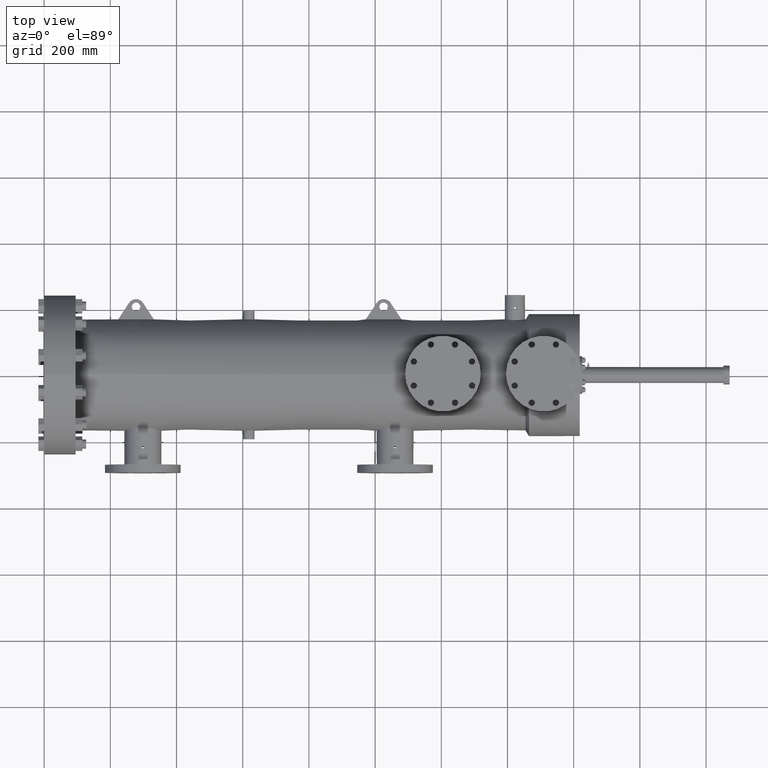
[diagram: clean part render]
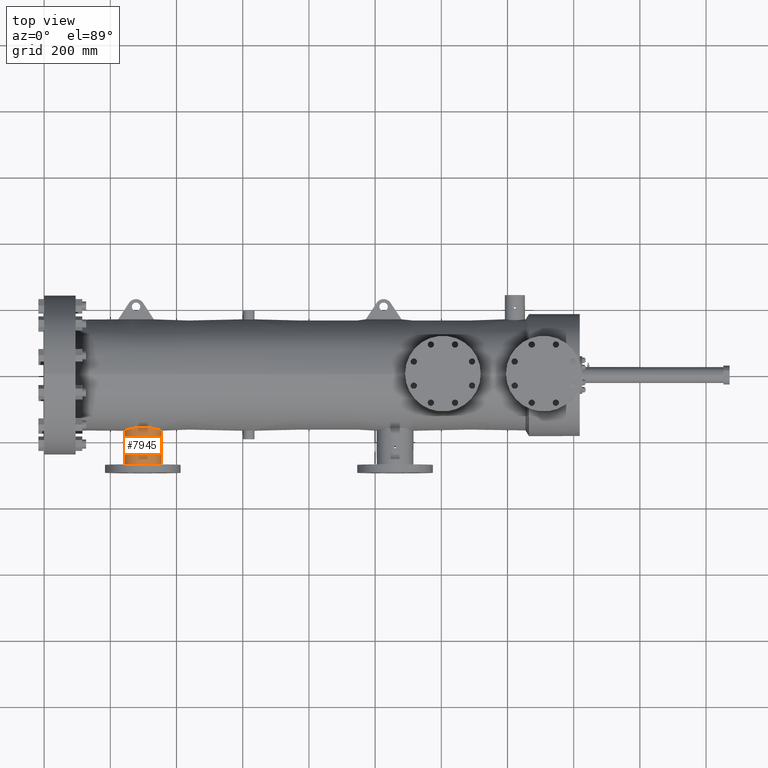
[diagram: same view with one face highlighted and labeled with its STEP entity id]
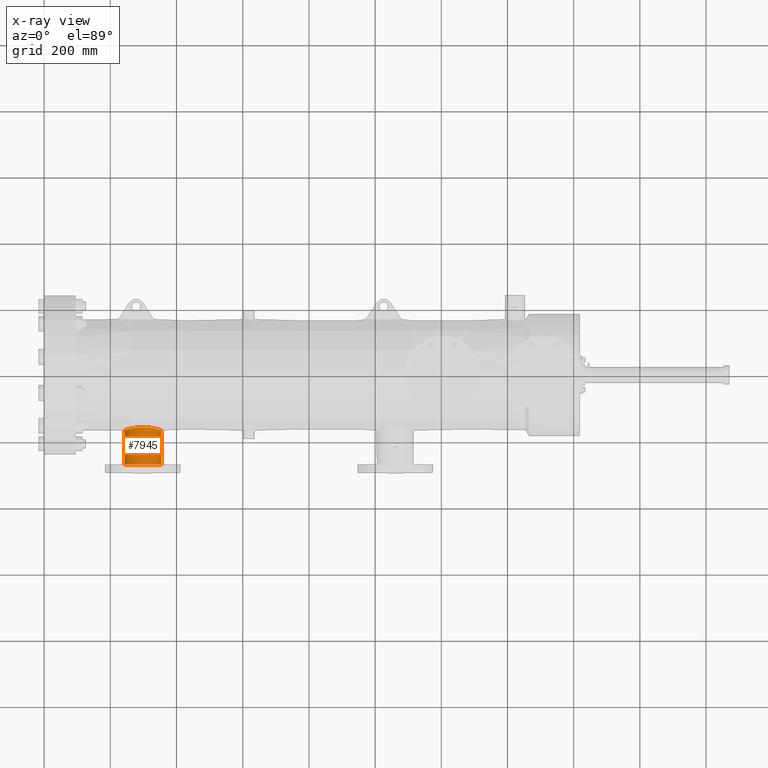
[diagram: x-ray of the same camera — body ghosted, the highlighted face saturated]
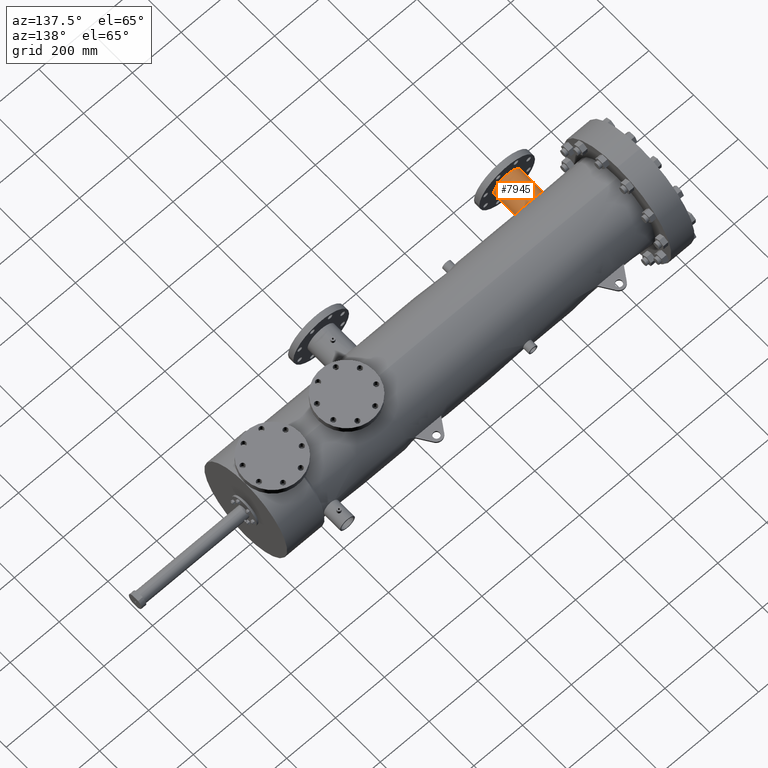
[diagram: same view with one face highlighted and labeled with its STEP entity id]
A machine part, top view. The second image highlights one B-rep face of the part: STEP entity #7945.
The next image is the same camera in x-ray: the body ghosted, the highlighted face saturated — about 0% of this face is hidden behind the body in this view.
A second angle (auxiliary view) of the same face is appended — the face is thin or edge-on in the first view.
In plain terms, the highlighted cylindrical surface (edge-blend (fillet) strip) has radius 55.8 mm, axis along (-0, 1, -0).
Its self-contained STEP definition (entity closure, byte-faithful):
#225 = CARTESIAN_POINT ( 'NONE',  ( 13.93836132703422592, 4.491321923585501033E-16, 2.690365802851271220E-16 ) ) ;
#613 = CARTESIAN_POINT ( 'NONE',  ( 10.45945407832693874, -6.380173412047850157, 1.785373495727251791 ) ) ;
#685 = CARTESIAN_POINT ( 'NONE',  ( 10.86427965921850181, -6.311495983700081247, 2.014428084861917601 ) ) ;
#758 = CARTESIAN_POINT ( 'NONE',  ( 9.558923983247167300, -6.620385264361994260, 0.2525530671773175695 ) ) ;
#907 = CARTESIAN_POINT ( 'NONE',  ( 11.46277646433226316, -8.791141239543456720, 2.179101608035185933 ) ) ;
#910 = VERTEX_POINT ( 'NONE', #6817 ) ;
#989 = CARTESIAN_POINT ( 'NONE',  ( 11.42799094181002140, -8.703400382331885510, 2.174364569802332170 ) ) ;
#1061 = CARTESIAN_POINT ( 'NONE',  ( 11.41966053963265537, -8.651170718853190778, 2.173146101019890253 ) ) ;
#1113 = CARTESIAN_POINT ( 'NONE',  ( 11.48605005365774900, -8.433819587740179813, 2.181957178902739436 ) ) ;
#1138 = CARTESIAN_POINT ( 'NONE',  ( 11.88451532459585813, -8.918986669535634348, 2.192277915422184975 ) ) ;
#1179 = CARTESIAN_POINT ( 'NONE',  ( 11.99737677617182818, -8.433514056320074559, 2.181930820202018673 ) ) ;
#1207 = CARTESIAN_POINT ( 'NONE',  ( 11.72045198710961422, -8.951744007984896001, 2.196852443106390940 ) ) ;
#1256 = EDGE_CURVE ( 'NONE', #10010, #17508, #20643, .T. ) ;
#1502 = CARTESIAN_POINT ( 'NONE',  ( 12.90322812501939076, -6.357382864021940527, 1.864901298520327932 ) ) ;
#1578 = CARTESIAN_POINT ( 'NONE',  ( 13.93836132703422948, -6.625282293406211664, 0.03641069868614398714 ) ) ;
#1652 = CARTESIAN_POINT ( 'NONE',  ( 11.45254243782086512, -6.256922347100519310, 2.178064615704380369 ) ) ;
#1686 = AXIS2_PLACEMENT_3D ( 'NONE', #9310, #18057, #21328 ) ;
#1811 = CARTESIAN_POINT ( 'NONE',  ( 12.51938069925449071, -6.298273535151328595, 2.055765860094336261 ) ) ;
#1993 = EDGE_CURVE ( 'NONE', #9412, #7428, #7202, .T. ) ;
#2085 = DIRECTION ( 'NONE',  ( -1.000000000000000000, -2.044436861273687145E-16, 0.0000000000000000000 ) ) ;
#2212 = CARTESIAN_POINT ( 'NONE',  ( 11.34514714687760772, -6.262799676072774879, 2.161098870160734542 ) ) ;
#2243 = ORIENTED_EDGE ( 'NONE', *, *, #13570, .T. ) ;
#2511 = CARTESIAN_POINT ( 'NONE',  ( 10.23892751292866521, -6.428318762392347452, 1.603024678726763019 ) ) ;
#2630 = CARTESIAN_POINT ( 'NONE',  ( 11.41966053963265537, -8.629879625677723709, 2.173146101019890697 ) ) ;
#2707 = CARTESIAN_POINT ( 'NONE',  ( 11.50656102227649669, -8.409661310972099457, 2.184263206593453521 ) ) ;
#2803 = CARTESIAN_POINT ( 'NONE',  ( 11.69952696424041960, -8.949669745519244657, 2.196545784260601319 ) ) ;
#2851 = CARTESIAN_POINT ( 'NONE',  ( 11.59906052379224661, -8.341078151482285818, 2.192246808652091872 ) ) ;
#2951 = CARTESIAN_POINT ( 'NONE',  ( 12.05253446643045123, -8.713323946938547948, 2.174724250801279180 ) ) ;
#3399 = CARTESIAN_POINT ( 'NONE',  ( 13.93744840196192314, -6.624979377985630968, 0.07304215544909645197 ) ) ;
#3479 = CARTESIAN_POINT ( 'NONE',  ( 13.71367204644349513, -6.553985452985163107, 0.9785289002875180442 ) ) ;
#3546 = CARTESIAN_POINT ( 'NONE',  ( 12.03480350695304679, -8.496919991647853720, 2.177188028249982921 ) ) ;
#3931 = CARTESIAN_POINT ( 'NONE',  ( 9.741433929515185497, -6.562470391623232757, 0.9094722981151629471 ) ) ;
#4013 = CARTESIAN_POINT ( 'NONE',  ( 10.08628248841689690, -6.465001066704139987, 1.451513589132652715 ) ) ;
#4082 = CARTESIAN_POINT ( 'NONE',  ( 10.29220380374715482, -6.416077101422848372, 1.651349115121549804 ) ) ;
#4230 = CARTESIAN_POINT ( 'NONE',  ( 9.788619891035152065, -6.548241644443676179, 1.006814481423935925 ) ) ;
#4388 = CARTESIAN_POINT ( 'NONE',  ( 11.42175262112820633, -8.672210949481597098, 2.173458979334982555 ) ) ;
#4432 = CARTESIAN_POINT ( 'NONE',  ( 11.66829045246945640, -8.316289631680295003, 2.195654451760250758 ) ) ;
#4458 = CARTESIAN_POINT ( 'NONE',  ( 11.55418741190382903, -8.891811283683869860, 2.188866973138478222 ) ) ;
#4588 = CARTESIAN_POINT ( 'NONE',  ( 11.87440596864715125, -8.336557324765403010, 2.192848818796516053 ) ) ;
#4686 = CARTESIAN_POINT ( 'NONE',  ( 12.01496855755079451, -8.799938927652831921, 2.179772360871284231 ) ) ;
#4989 = CARTESIAN_POINT ( 'NONE',  ( 13.82163492379610759, -6.587462825164991820, 0.7102512796314079946 ) ) ;
#5072 = CARTESIAN_POINT ( 'NONE',  ( 12.34864033900388058, -6.279711710808576264, 2.111597210191546115 ) ) ;
#5143 = CARTESIAN_POINT ( 'NONE',  ( 13.39214656424395855, -6.464562894794788406, 1.451452292800394783 ) ) ;
#5290 = CARTESIAN_POINT ( 'NONE',  ( 13.90967022201493108, -6.615809419552356907, 0.3611264934354779799 ) ) ;
#5581 = ORIENTED_EDGE ( 'NONE', *, *, #6451, .F. ) ;
#5827 = CARTESIAN_POINT ( 'NONE',  ( 11.03095352651082450, -6.289201828074034495, 2.083774667499414868 ) ) ;
#5897 = CARTESIAN_POINT ( 'NONE',  ( 10.83111171407014517, -6.316193978391050123, 1.999657323936574471 ) ) ;
#6031 = CARTESIAN_POINT ( 'NONE',  ( 11.46220908762923685, -8.468571701551782738, 2.179054981444724870 ) ) ;
#6102 = CARTESIAN_POINT ( 'NONE',  ( 11.57137432848402447, -8.356469388247287355, 2.190270086311716380 ) ) ;
#6127 = CARTESIAN_POINT ( 'NONE',  ( 11.44386329218530207, -8.753663057972502770, 2.176604376049117384 ) ) ;
#6203 = CARTESIAN_POINT ( 'NONE',  ( 11.52928471791476639, -8.872076976304102303, 2.186590761887266421 ) ) ;
#6255 = CARTESIAN_POINT ( 'NONE',  ( 11.78377374396226784, -8.310122007249134413, 2.196540989437071545 ) ) ;
#6270 = VECTOR ( 'NONE', #15549, 39.37007874015748143 ) ;
#6314 = CARTESIAN_POINT ( 'NONE',  ( 11.88405362337546656, -8.341122501286537982, 2.192240923684296572 ) ) ;
#6339 = CARTESIAN_POINT ( 'NONE',  ( 11.81482736185750149, -8.943443674504070628, 2.195650759168112032 ) ) ;
#6419 = CARTESIAN_POINT ( 'NONE',  ( 11.85528042466349063, -8.931136234681851249, 2.193924205769658187 ) ) ;
#6451 = EDGE_CURVE ( 'NONE', #10010, #19444, #15336, .T. ) ;
#6727 = CARTESIAN_POINT ( 'NONE',  ( 11.59771097530017236, -6.251587662152419789, 2.193353436717868643 ) ) ;
#6806 = CARTESIAN_POINT ( 'NONE',  ( 13.93836132703422948, -6.625282293406212553, 2.691808859561526713E-16 ) ) ;
#6817 = CARTESIAN_POINT ( 'NONE',  ( 13.93836132703422948, -6.625282293406212553, 2.691808859561526713E-16 ) ) ;
#6867 = AXIS2_PLACEMENT_3D ( 'NONE', #15681, #9107, #2085 ) ;
#6954 = CARTESIAN_POINT ( 'NONE',  ( 13.93382332935983747, -6.623778533312912664, 0.1457493767674739593 ) ) ;
#7023 = CARTESIAN_POINT ( 'NONE',  ( 12.81041693124038083, -6.341071758189249508, 1.919601964331243860 ) ) ;
#7202 = B_SPLINE_CURVE_WITH_KNOTS ( 'NONE', 3,
 ( #9692, #9769, #9610, #16759, #2951, #14903, #11446, #13302, #21701, #4686, #20033, #18421, #18347, #13149, #18199, #1138, #6419, #11590, #21764, #6339, #8068, #15045, #1207, #2803, #14755, #14971, #19886, #20180, #9843, #14828, #4458, #21624, #6203, #11367, #16464, #18497, #21919, #907, #16540, #6127, #9536, #11294, #989, #4388, #1061, #13007 ),
 .UNSPECIFIED., .F., .F.,
 ( 4, 2, 2, 1, 2, 2, 2, 2, 2, 2, 2, 2, 2, 2, 2, 2, 2, 2, 2, 2, 1, 2, 2, 4 ),
 ( 0.02559319775953237258, 0.02719238125656504509, 0.02799197300508134145, 0.02879156475359763781, 0.02959115650211393417, 0.03039074825063022706, 0.03198993174766272957, 0.03358911524469523208, 0.03518829874172772765, 0.03598789049024405523, 0.03678748223876038281, 0.03838666573579303798, 0.03998584923282568621, 0.04078544098134201379, 0.04158503272985833443, 0.04318421622689096184, 0.04398380797540726861, 0.04478339972392357538, 0.04638258322095625830, 0.04718217496947258588, 0.04798176671798891346, 0.04878135846650524104, 0.04958095021502156863, 0.05118013371205425155 ),
 .UNSPECIFIED. ) ;
#7428 = VERTEX_POINT ( 'NONE', #14233 ) ;
#7547 = CARTESIAN_POINT ( 'NONE',  ( 10.63899437139961890, -6.346500870075810319, 1.901513165396624627 ) ) ;
#7621 = CARTESIAN_POINT ( 'NONE',  ( 10.73377024174784289, -6.330958625785372718, 1.952407797984023308 ) ) ;
#7894 = CARTESIAN_POINT ( 'NONE',  ( 11.72036714157666282, -8.308037085260270516, 2.196849243152635189 ) ) ;
#7945 = ADVANCED_FACE ( 'NONE', ( #10682, #11765 ), #16863, .T. ) ;
#7961 = CARTESIAN_POINT ( 'NONE',  ( 11.84515319854856230, -8.324443047024891129, 2.194491160607489721 ) ) ;
#8042 = CARTESIAN_POINT ( 'NONE',  ( 11.91167219415337897, -8.356488714846765475, 2.190267830354144074 ) ) ;
#8068 = CARTESIAN_POINT ( 'NONE',  ( 11.78396737110581682, -8.949606491529184638, 2.196536526828062108 ) ) ;
#8377 = ORIENTED_EDGE ( 'NONE', *, *, #1993, .T. ) ;
#8528 = CARTESIAN_POINT ( 'NONE',  ( 13.93111489657289681, -6.622881843702862703, 0.1819177060809873125 ) ) ;
#8687 = CARTESIAN_POINT ( 'NONE',  ( 12.71580272596258077, -6.325576654946085675, 1.970286141962328985 ) ) ;
#8764 = CARTESIAN_POINT ( 'NONE',  ( 10.40222862776544765, -6.391952332706583917, 1.742868037996699426 ) ) ;
#9060 = CARTESIAN_POINT ( 'NONE',  ( 12.04691097624281326, -8.526134851824012983, 2.175534148953504943 ) ) ;
#9107 = DIRECTION ( 'NONE',  ( -2.044436861273687145E-16, 1.000000000000000000, -0.0000000000000000000 ) ) ;
#9225 = EDGE_CURVE ( 'NONE', #17508, #910, #18701, .T. ) ;
#9310 = CARTESIAN_POINT ( 'NONE',  ( 11.74151093333344242, -10.68987962567772421, 0.0000000000000000000 ) ) ;
#9382 = CARTESIAN_POINT ( 'NONE',  ( 9.726835635625910470, -6.566937124399228054, 0.8766532897306680283 ) ) ;
#9412 = VERTEX_POINT ( 'NONE', #21309 ) ;
#9508 = CARTESIAN_POINT ( 'NONE',  ( 11.44019340554774899, -8.516272159821445698, 2.176091919560648069 ) ) ;
#9536 = CARTESIAN_POINT ( 'NONE',  ( 11.43675417447157372, -8.733909169488416779, 2.175611323334704750 ) ) ;
#9585 = CARTESIAN_POINT ( 'NONE',  ( 11.42789933683978099, -8.556765937002063893, 2.174351329552873135 ) ) ;
#9610 = CARTESIAN_POINT ( 'NONE',  ( 12.06132303400724837, -8.671801018634560876, 2.173451011832288948 ) ) ;
#9692 = CARTESIAN_POINT ( 'NONE',  ( 12.06336132703422948, -8.629879625677723709, 2.173146101019890253 ) ) ;
#9769 = CARTESIAN_POINT ( 'NONE',  ( 12.06336132703423125, -8.650894574979037799, 2.173146101019891141 ) ) ;
#9819 = CARTESIAN_POINT ( 'NONE',  ( 11.95408202319279489, -8.387286925363133250, 2.186593846897408433 ) ) ;
#9843 = CARTESIAN_POINT ( 'NONE',  ( 11.59891989738509999, -8.919188567576499693, 2.192304685942649378 ) ) ;
#10010 = VERTEX_POINT ( 'NONE', #11865 ) ;
#10287 = CARTESIAN_POINT ( 'NONE',  ( 13.48287747244503976, -6.488443359914809250, 1.339807750511192275 ) ) ;
#10363 = CARTESIAN_POINT ( 'NONE',  ( 13.54642427170093200, -6.505793334511532855, 1.252884166436067259 ) ) ;
#10439 = CARTESIAN_POINT ( 'NONE',  ( 13.92035329947733047, -6.619328681563940719, 0.2898780037626076944 ) ) ;
#10518 = DIRECTION ( 'NONE',  ( -2.044436861273686899E-16, 1.000000000000000000, -0.0000000000000000000 ) ) ;
#10682 = FACE_BOUND ( 'NONE', #13185, .T. ) ;
#10844 = CARTESIAN_POINT ( 'NONE',  ( 9.544660539632655372, -6.625101548162554366, -9.427141743641528412E-21 ) ) ;
#10915 = CARTESIAN_POINT ( 'NONE',  ( 9.580471006952713253, -6.613311325307612343, 0.3966947770158660291 ) ) ;
#10991 = CARTESIAN_POINT ( 'NONE',  ( 9.839901988507083530, -6.533072005643877134, 1.102390020102616663 ) ) ;
#11145 = CARTESIAN_POINT ( 'NONE',  ( 9.616053004790295233, -6.601719843597278370, 0.5740372477603656876 ) ) ;
#11294 = CARTESIAN_POINT ( 'NONE',  ( 11.43059939869815977, -8.713741689140219293, 2.174740290224308481 ) ) ;
#11339 = CARTESIAN_POINT ( 'NONE',  ( 11.65794631256133407, -8.318888178878065531, 2.195283680973524110 ) ) ;
#11367 = CARTESIAN_POINT ( 'NONE',  ( 11.52149434887547663, -8.865018194725870160, 2.185817903657593764 ) ) ;
#11420 = CARTESIAN_POINT ( 'NONE',  ( 11.58049990817592700, -8.350999973401618703, 2.190961806833121805 ) ) ;
#11446 = CARTESIAN_POINT ( 'NONE',  ( 12.03933599426411405, -8.753236705293724995, 2.176580009932946869 ) ) ;
#11567 = CARTESIAN_POINT ( 'NONE',  ( 11.98408377646665635, -8.417285876324203997, 2.183469151444065837 ) ) ;
#11590 = CARTESIAN_POINT ( 'NONE',  ( 11.84523021760713313, -8.934742710720110281, 2.194423894359113003 ) ) ;
#11765 = FACE_OUTER_BOUND ( 'NONE', #17392, .T. ) ;
#11865 = CARTESIAN_POINT ( 'NONE',  ( 9.544660539632655372, -10.68987962567772421, 0.0000000000000000000 ) ) ;
#11880 = CARTESIAN_POINT ( 'NONE',  ( 11.88650109132886001, -6.250384161654749526, 2.196803326144834756 ) ) ;
#12030 = CARTESIAN_POINT ( 'NONE',  ( 12.02982381328806483, -6.255407868242811809, 2.182682620609503132 ) ) ;
#12070 = CARTESIAN_POINT ( 'NONE',  ( 12.06284782824526758, -8.608832202406837553, 2.173222345586605098 ) ) ;
#12088 = ORIENTED_EDGE ( 'NONE', *, *, #9225, .T. ) ;
#12106 = CARTESIAN_POINT ( 'NONE',  ( 13.08324206052472682, -6.391730342838839896, 1.745456618352654088 ) ) ;
#12629 = CARTESIAN_POINT ( 'NONE',  ( 10.76586980228611168, -6.325924413758734488, 1.968649419022364677 ) ) ;
#12712 = CARTESIAN_POINT ( 'NONE',  ( 9.563414807048886246, -6.618905186042835176, 0.2887560221183787523 ) ) ;
#13007 = CARTESIAN_POINT ( 'NONE',  ( 11.41966053963265537, -8.629879625677723709, 2.173146101019890697 ) ) ;
#13055 = CARTESIAN_POINT ( 'NONE',  ( 11.54499027765969288, -8.374115881016114926, 2.188113967824830475 ) ) ;
#13125 = CARTESIAN_POINT ( 'NONE',  ( 11.76241496033292044, -8.308021423347229373, 2.196851537706943525 ) ) ;
#13149 = CARTESIAN_POINT ( 'NONE',  ( 11.93788582891275318, -8.885741854296981046, 2.188125963975634303 ) ) ;
#13185 = EDGE_LOOP ( 'NONE', ( #2243, #8377 ) ) ;
#13198 = CARTESIAN_POINT ( 'NONE',  ( 11.52880314776706960, -8.387428316064434952, 2.186579362059345666 ) ) ;
#13273 = CARTESIAN_POINT ( 'NONE',  ( 12.01485279139038553, -8.459639568205552962, 2.179786761653801808 ) ) ;
#13278 = ORIENTED_EDGE ( 'NONE', *, *, #14821, .T. ) ;
#13302 = CARTESIAN_POINT ( 'NONE',  ( 12.03036968554843433, -8.772214629396991370, 2.177782660815148486 ) ) ;
#13348 = CARTESIAN_POINT ( 'NONE',  ( 12.02026446545553817, -8.468647486024474702, 2.179099222022846227 ) ) ;
#13470 = B_SPLINE_CURVE_WITH_KNOTS ( 'NONE', 3,
 ( #2630, #19860, #20092, #9585, #18246, #16588, #9508, #16513, #6031, #16435, #1113, #21674, #2707, #13198, #13055, #6102, #11420, #2851, #14800, #18176, #11339, #4432, #21893, #7894, #13125, #6255, #18322, #7961, #4588, #6314, #18398, #8042, #20154, #9819, #11567, #1179, #13273, #13348, #19414, #3546, #9060, #18106, #14806, #16664, #12070, #19404, #14556 ),
 .UNSPECIFIED., .F., .F.,
 ( 4, 2, 2, 2, 2, 2, 2, 2, 2, 1, 2, 2, 2, 2, 2, 2, 2, 2, 2, 2, 2, 2, 2, 4 ),
 ( 0.0000000000000000000, 0.001599574859970812318, 0.002399362289956218693, 0.003199149719941625503, 0.004798724579912516316, 0.005598512009897927029, 0.006398299439883337741, 0.007997874299854041205, 0.008797661729839326150, 0.009597449159824609360, 0.01039723658980989431, 0.01119702401979517752, 0.01279659887976590700, 0.01439617373973663822, 0.01599574859970736770, 0.01679553602969280704, 0.01759532345967824638, 0.01919489831964894810, 0.02079447317961964636, 0.02159426060960504060, 0.02239404803959043483, 0.02399362289956136207, 0.02479341032954687080, 0.02559319775953237258 ),
 .UNSPECIFIED. ) ;
#13570 = EDGE_CURVE ( 'NONE', #7428, #9412, #13470, .T. ) ;
#13605 = CARTESIAN_POINT ( 'NONE',  ( 11.67008822981215665, -6.250349971788666359, 2.196873752988169226 ) ) ;
#13682 = CARTESIAN_POINT ( 'NONE',  ( 13.86381051186129731, -6.600903661459202709, 0.5720290157822945920 ) ) ;
#13770 = CARTESIAN_POINT ( 'NONE',  ( 13.79690102630261350, -6.579670871033096446, 0.7789222497412772173 ) ) ;
#13851 = CARTESIAN_POINT ( 'NONE',  ( 13.46061661847531354, -6.482498946855364430, 1.368253382461414702 ) ) ;
#13926 = CARTESIAN_POINT ( 'NONE',  ( 12.45198151702477318, -6.290268291845905857, 2.080041385663569997 ) ) ;
#14233 = CARTESIAN_POINT ( 'NONE',  ( 11.41966053963265537, -8.629879625677723709, 2.173146101019890697 ) ) ;
#14302 = CARTESIAN_POINT ( 'NONE',  ( 11.16832217957408524, -6.274976750679800652, 2.125657807172169456 ) ) ;
#14556 = CARTESIAN_POINT ( 'NONE',  ( 12.06336132703422948, -8.629879625677723709, 2.173146101019890253 ) ) ;
#14597 = CARTESIAN_POINT ( 'NONE',  ( 9.574204461338668537, -6.615362903971878872, 0.3609230279366876237 ) ) ;
#14755 = CARTESIAN_POINT ( 'NONE',  ( 11.66863863951571112, -8.943547410666907282, 2.195665588614231112 ) ) ;
#14800 = CARTESIAN_POINT ( 'NONE',  ( 11.61802332434391793, -8.332108882411693784, 2.193441207241392910 ) ) ;
#14806 = CARTESIAN_POINT ( 'NONE',  ( 12.05919198403818804, -8.577179375653489757, 2.173760507593711644 ) ) ;
#14821 = EDGE_CURVE ( 'NONE', #910, #19444, #15348, .T. ) ;
#14828 = CARTESIAN_POINT ( 'NONE',  ( 11.58043804680034050, -8.909317772741429664, 2.191007868407314430 ) ) ;
#14903 = CARTESIAN_POINT ( 'NONE',  ( 12.04641396596760039, -8.733478532917716919, 2.175590803863131306 ) ) ;
#14971 = CARTESIAN_POINT ( 'NONE',  ( 11.65842633935563555, -8.941001085164479889, 2.195302105704690643 ) ) ;
#15045 = CARTESIAN_POINT ( 'NONE',  ( 11.76299531518969665, -8.951715890182349256, 2.196848323698026739 ) ) ;
#15336 = LINE ( 'NONE', #19041, #19423 ) ;
#15348 = B_SPLINE_CURVE_WITH_KNOTS ( 'NONE', 3,
 ( #6806, #1578, #3399, #6954, #8528, #10439, #5290, #17130, #13682, #4989, #13770, #3479, #20629, #10363, #15636, #10287, #13851, #5143, #22214, #15557, #12106, #19043, #1502, #15484, #7023, #8687, #17055, #1811, #13926, #5072, #22369, #20475, #19128, #12030, #11880, #13605, #6727, #18809, #1652, #21325, #2212, #14302, #5827, #685, #5897, #12629, #7621, #7547, #17829, #613, #8764, #20866, #4082, #2511, #17905, #4013, #19738, #17976, #10991, #4230, #16233, #3931, #9382, #21254, #11145, #10915, #14597, #12712, #758, #16015, #19665, #10844 ),
 .UNSPECIFIED., .F., .F.,
 ( 4, 2, 2, 2, 2, 2, 2, 2, 2, 2, 2, 2, 2, 2, 2, 2, 2, 2, 2, 2, 2, 2, 2, 2, 2, 2, 2, 2, 2, 2, 2, 2, 2, 2, 2, 4 ),
 ( 0.1286154440353500794, 0.1313609645630257894, 0.1341064850907015271, 0.1395975261460529748, 0.1450885672014044503, 0.1505796082567558980, 0.1615616903674587657, 0.1643072108951344201, 0.1670527314228100746, 0.1725437724781612725, 0.1835258545888637238, 0.1862713751165392950, 0.1890168956442148940, 0.1945079366995659254, 0.1999989777549169290, 0.2027444982825925557, 0.2054900188102681269, 0.2164721009209701896, 0.2219631419763212765, 0.2247086625039968477, 0.2274541830316723634, 0.2384362651423747315, 0.2411817856700504137, 0.2439273061977260681, 0.2494183472530774048, 0.2549093883084286860, 0.2576549088361044237, 0.2604004293637800505, 0.2713825114744828348, 0.2768735525298342548, 0.2796190730575098815, 0.2823645935851856192, 0.2933466756958882371, 0.2960921962235639748, 0.2988377167512396015, 0.3043287578065909660 ),
 .UNSPECIFIED. ) ;
#15484 = CARTESIAN_POINT ( 'NONE',  ( 12.84159555304195877, -6.346407063965044060, 1.901908913739631668 ) ) ;
#15549 = DIRECTION ( 'NONE',  ( -2.044436861273686899E-16, 1.000000000000000000, -0.0000000000000000000 ) ) ;
#15557 = CARTESIAN_POINT ( 'NONE',  ( 13.19312007621687677, -6.416029191698849665, 1.655059946174123775 ) ) ;
#15636 = CARTESIAN_POINT ( 'NONE',  ( 13.52575387042242383, -6.500083541109913376, 1.282154192488346167 ) ) ;
#15681 = CARTESIAN_POINT ( 'NONE',  ( 11.74151093333344065, 0.0000000000000000000, 0.0000000000000000000 ) ) ;
#16015 = CARTESIAN_POINT ( 'NONE',  ( 9.548197037121898489, -6.623926409486636580, 0.1442032644766774729 ) ) ;
#16090 = ORIENTED_EDGE ( 'NONE', *, *, #1256, .T. ) ;
#16233 = CARTESIAN_POINT ( 'NONE',  ( 9.772309881642167184, -6.553127438982571107, 0.9745230116623592176 ) ) ;
#16435 = CARTESIAN_POINT ( 'NONE',  ( 11.47972930444615436, -8.442346755036256312, 2.181205320756808508 ) ) ;
#16464 = CARTESIAN_POINT ( 'NONE',  ( 11.49925431225753236, -8.842807966043841006, 2.183503055684026251 ) ) ;
#16513 = CARTESIAN_POINT ( 'NONE',  ( 11.45231944783073885, -8.487047933349483486, 2.177748035819327299 ) ) ;
#16540 = CARTESIAN_POINT ( 'NONE',  ( 11.45284631710796219, -8.772606468476642050, 2.177808407939114232 ) ) ;
#16588 = CARTESIAN_POINT ( 'NONE',  ( 11.43659226671990758, -8.526322477101507147, 2.175588626330680064 ) ) ;
#16664 = CARTESIAN_POINT ( 'NONE',  ( 12.06076219438164188, -8.587701119575099185, 2.173529708954458073 ) ) ;
#16759 = CARTESIAN_POINT ( 'NONE',  ( 12.05512594674421045, -8.702993755902912909, 2.174350853182136500 ) ) ;
#16863 = CYLINDRICAL_SURFACE ( 'NONE', #6867, 2.196850393700787052 ) ;
#17055 = CARTESIAN_POINT ( 'NONE',  ( 12.65129137638593093, -6.315927525583749258, 2.000888350134187199 ) ) ;
#17130 = CARTESIAN_POINT ( 'NONE',  ( 13.88139882529951841, -6.606597032843928297, 0.5022020063418793923 ) ) ;
#17392 = EDGE_LOOP ( 'NONE', ( #16090, #12088, #13278, #5581 ) ) ;
#17508 = VERTEX_POINT ( 'NONE', #18510 ) ;
#17829 = CARTESIAN_POINT ( 'NONE',  ( 10.57783701616514094, -6.357447955130890449, 1.864696037754330238 ) ) ;
#17905 = CARTESIAN_POINT ( 'NONE',  ( 10.21285505063374011, -6.434467216956798019, 1.578177880608057082 ) ) ;
#17976 = CARTESIAN_POINT ( 'NONE',  ( 9.876905739344776336, -6.522369105175768844, 1.163825092835850894 ) ) ;
#18057 = DIRECTION ( 'NONE',  ( -2.044436861273687145E-16, 1.000000000000000000, -0.0000000000000000000 ) ) ;
#18106 = CARTESIAN_POINT ( 'NONE',  ( 12.05300556169138737, -8.546199675593777911, 2.174658620795002051 ) ) ;
#18176 = CARTESIAN_POINT ( 'NONE',  ( 11.63778214173346903, -8.325020537539382204, 2.194423346482320625 ) ) ;
#18199 = CARTESIAN_POINT ( 'NONE',  ( 11.90297753378288270, -8.909087642373336280, 2.190978519013224268 ) ) ;
#18246 = CARTESIAN_POINT ( 'NONE',  ( 11.43045287109697661, -8.546558810821498042, 2.174719325841034667 ) ) ;
#18322 = CARTESIAN_POINT ( 'NONE',  ( 11.82507561266294083, -8.318354307165840567, 2.195357694729492604 ) ) ;
#18347 = CARTESIAN_POINT ( 'NONE',  ( 11.95442072816569201, -8.872154488595661803, 2.186559666488571807 ) ) ;
#18398 = CARTESIAN_POINT ( 'NONE',  ( 11.90266736342541876, -8.351082745474423419, 2.190951229717495341 ) ) ;
#18421 = CARTESIAN_POINT ( 'NONE',  ( 11.98406642309003800, -8.842469663841214356, 2.183469851003000173 ) ) ;
#18497 = CARTESIAN_POINT ( 'NONE',  ( 11.48592466423538916, -8.826632777510246441, 2.181964336664721671 ) ) ;
#18510 = CARTESIAN_POINT ( 'NONE',  ( 13.93836132703423125, -10.68987962567772421, 2.690365802851271220E-16 ) ) ;
#18701 = LINE ( 'NONE', #225, #6270 ) ;
#18809 = CARTESIAN_POINT ( 'NONE',  ( 11.48877356122435778, -6.255352726285126508, 2.182568897318017509 ) ) ;
#19041 = CARTESIAN_POINT ( 'NONE',  ( 9.544660539632653595, -4.491321923585501033E-16, 0.0000000000000000000 ) ) ;
#19043 = CARTESIAN_POINT ( 'NONE',  ( 12.93376292225254787, -6.363039382901851226, 1.845530058131493290 ) ) ;
#19128 = CARTESIAN_POINT ( 'NONE',  ( 12.20777259544122373, -6.267647867213533175, 2.147107116604569654 ) ) ;
#19404 = CARTESIAN_POINT ( 'NONE',  ( 12.06336132703422948, -8.619369579567221606, 2.173146101019890253 ) ) ;
#19414 = CARTESIAN_POINT ( 'NONE',  ( 12.03023978652648296, -8.487278840751622866, 2.177799944996084314 ) ) ;
#19423 = VECTOR ( 'NONE', #10518, 39.37007874015748143 ) ;
#19444 = VERTEX_POINT ( 'NONE', #21561 ) ;
#19665 = CARTESIAN_POINT ( 'NONE',  ( 9.544660539632651819, -6.625101548162554366, 0.07205837679648298411 ) ) ;
#19738 = CARTESIAN_POINT ( 'NONE',  ( 9.996064384205235243, -6.488977851139604347, 1.341613540436298990 ) ) ;
#19860 = CARTESIAN_POINT ( 'NONE',  ( 11.41966053963266070, -8.608583322002775873, 2.173146101019890697 ) ) ;
#19886 = CARTESIAN_POINT ( 'NONE',  ( 11.63817315995307489, -8.934872932001674428, 2.194441999611904670 ) ) ;
#20033 = CARTESIAN_POINT ( 'NONE',  ( 11.99736124240167889, -8.826283661524909618, 2.181933118196717647 ) ) ;
#20092 = CARTESIAN_POINT ( 'NONE',  ( 11.42175336128552310, -8.587648747753746648, 2.173458968865689567 ) ) ;
#20154 = CARTESIAN_POINT ( 'NONE',  ( 11.93780230838275536, -8.373956888234483031, 2.188133184393416197 ) ) ;
#20180 = CARTESIAN_POINT ( 'NONE',  ( 11.62812919625903874, -8.931281857737900509, 2.193944240588214356 ) ) ;
#20475 = CARTESIAN_POINT ( 'NONE',  ( 12.24340567939539781, -6.270403323343100688, 2.139058582868688774 ) ) ;
#20629 = CARTESIAN_POINT ( 'NONE',  ( 13.64599556951371184, -6.533702583299202615, 1.104335901061248348 ) ) ;
#20643 = CIRCLE ( 'NONE', #1686, 2.196850393700787940 ) ;
#20866 = CARTESIAN_POINT ( 'NONE',  ( 10.31934054315262372, -6.409998639315754865, 1.674772116883339157 ) ) ;
#21254 = CARTESIAN_POINT ( 'NONE',  ( 9.657989569697528864, -6.588186202006656167, 0.7111010280822993579 ) ) ;
#21309 = CARTESIAN_POINT ( 'NONE',  ( 12.06336132703422948, -8.629879625677723709, 2.173146101019890253 ) ) ;
#21325 = CARTESIAN_POINT ( 'NONE',  ( 11.38077002613300515, -6.260644483304589336, 2.167333444455299851 ) ) ;
#21328 = DIRECTION ( 'NONE',  ( -1.000000000000000000, 0.0000000000000000000, 0.0000000000000000000 ) ) ;
#21561 = CARTESIAN_POINT ( 'NONE',  ( 9.544660539632655372, -6.625101548162554366, -9.427141743641528412E-21 ) ) ;
#21624 = CARTESIAN_POINT ( 'NONE',  ( 11.54564223318655536, -8.885486698084067214, 2.188116673942329005 ) ) ;
#21674 = CARTESIAN_POINT ( 'NONE',  ( 11.49948923808683965, -8.417452465100943471, 2.183488697163289416 ) ) ;
#21701 = CARTESIAN_POINT ( 'NONE',  ( 12.02044478044496145, -8.790797433736790012, 2.179076089863288601 ) ) ;
#21764 = CARTESIAN_POINT ( 'NONE',  ( 11.82502328272040515, -8.940885860424993226, 2.195285768542293958 ) ) ;
#21893 = CARTESIAN_POINT ( 'NONE',  ( 11.69946298791530026, -8.310084949169343815, 2.196546347060872595 ) ) ;
#21919 = CARTESIAN_POINT ( 'NONE',  ( 11.46824210763280938, -8.800243770294725820, 2.179796106287172019 ) ) ;
#22214 = CARTESIAN_POINT ( 'NONE',  ( 13.34412990930954557, -6.452432948897063980, 1.504268689214778520 ) ) ;
#22369 = CARTESIAN_POINT ( 'NONE',  ( 12.31381887595740032, -6.276434837056689808, 2.121304687186244653 ) ) ;